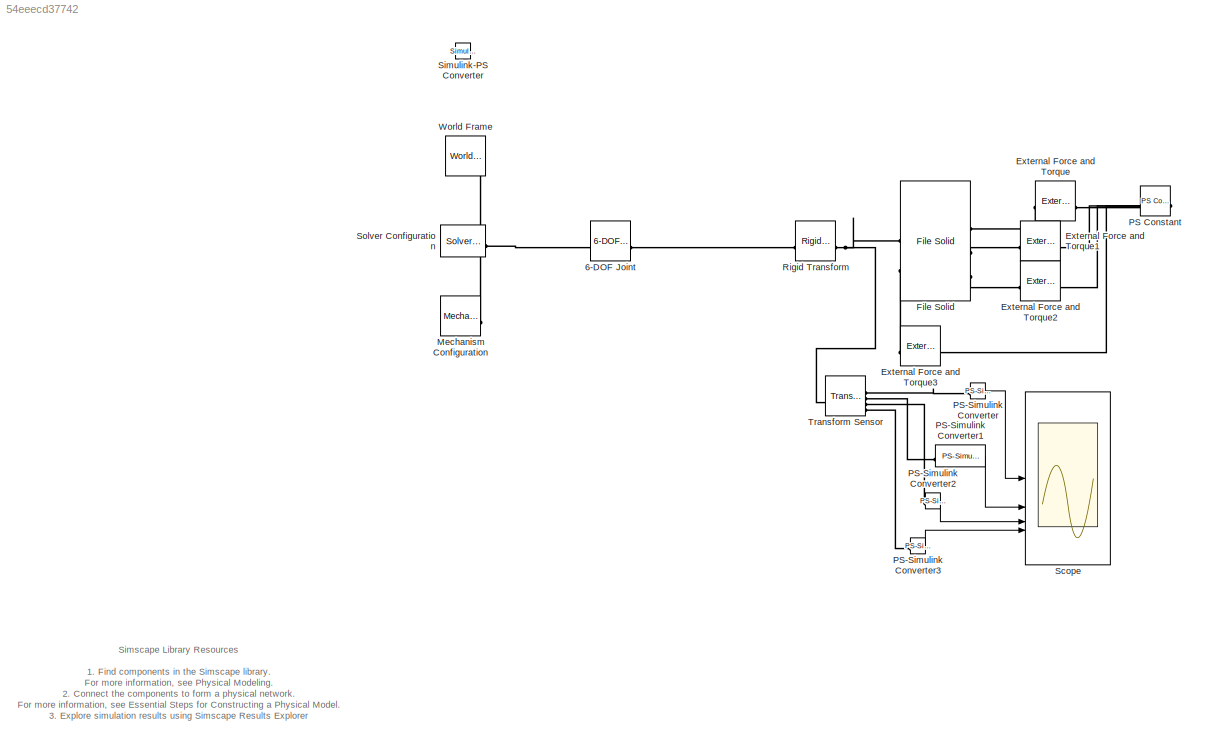
MODEL slx_54eeecd37742
KIND model
CONFIG AbsTol = 1e-3
CONFIG EnableMultiTasking = off
CONFIG FixedStep = 0.0001
CONFIG MaxStep = auto
CONFIG MinStep = auto
CONFIG RelTol = 1e-3
CONFIG SampleTimeConstraint = Unconstrained
CONFIG SolverName = FixedStepAuto
CONFIG StartTime = 0.0
CONFIG StopTime = 10.0
BLOCK [Reference] 6-DOF Joint  REF=sm_lib/Joints/6-DOF Joint
  SourceBlock = sm_lib/Joints/6-DOF Joint
  SourceType = 6-DOF Joint
BLOCK [Reference] External Force and Torque  REF=sm_lib/Forces and
Torques/External Force
and Torque
  NameLocation = top
  SourceBlock = sm_lib/Forces and\nTorques/External Force\nand Torque
  SourceType = External Force\nand Torque
BLOCK [Reference] External Force and Torque1  REF=sm_lib/Forces and
Torques/External Force
and Torque
  NameLocation = top
  SourceBlock = sm_lib/Forces and\nTorques/External Force\nand Torque
  SourceType = External Force\nand Torque
BLOCK [Reference] External Force and Torque2  REF=sm_lib/Forces and
Torques/External Force
and Torque
  NameLocation = top
  SourceBlock = sm_lib/Forces and\nTorques/External Force\nand Torque
  SourceType = External Force\nand Torque
BLOCK [Reference] External Force and Torque3  REF=sm_lib/Forces and
Torques/External Force
and Torque
  NameLocation = top
  SourceBlock = sm_lib/Forces and\nTorques/External Force\nand Torque
  SourceType = External Force\nand Torque
BLOCK [Reference] File Solid  REF=sm_lib/Body Elements/File Solid
  NameLocation = top
  SourceBlock = sm_lib/Body Elements/File Solid
  SourceType = File Solid
BLOCK [Reference] Mechanism Configuration  REF=sm_lib/Utilities/Mechanism
Configuration
  SourceBlock = sm_lib/Utilities/Mechanism\nConfiguration
  SourceType = Mechanism\nConfiguration
BLOCK [Reference] PS Constant  REF=fl_lib/Physical Signals/Sources/PS Constant
  NameLocation = top
  SourceBlock = fl_lib/Physical Signals/Sources/PS Constant
  SourceType = PS Constant
BLOCK [Reference] PS-Simulink Converter  REF=nesl_utility/PS-Simulink
Converter
  SourceBlock = nesl_utility/PS-Simulink\nConverter
  SourceType = PS-Simulink\nConverter
BLOCK [Reference] PS-Simulink Converter1  REF=nesl_utility/PS-Simulink
Converter
  SourceBlock = nesl_utility/PS-Simulink\nConverter
  SourceType = PS-Simulink\nConverter
BLOCK [Reference] PS-Simulink Converter2  REF=nesl_utility/PS-Simulink
Converter
  SourceBlock = nesl_utility/PS-Simulink\nConverter
  SourceType = PS-Simulink\nConverter
BLOCK [Reference] PS-Simulink Converter3  REF=nesl_utility/PS-Simulink
Converter
  SourceBlock = nesl_utility/PS-Simulink\nConverter
  SourceType = PS-Simulink\nConverter
BLOCK [Reference] Rigid Transform  REF=sm_lib/Frames and
Transforms/Rigid
Transform
  SourceBlock = sm_lib/Frames and\nTransforms/Rigid\nTransform
  SourceType = Rigid\nTransform
BLOCK [Scope] Scope
  Floating = off
  NumInputPorts = 4
  ScopeSpecificationString = Simulink.scopes.TimeScopeBlockCfg('CurrentConfiguration', extmgr.ConfigurationSet(extmgr.Configuration('Core','General UI',true),extmgr.Configuration('Core','Source UI',true),extmgr.Configuration('Sources','WiredSimulink',true),extmgr.Configuration('Visuals','Time Domain',true,'SerializedDisplays',{struct('MinYLimReal','-0.39253','MaxYLimReal','3.53427','YLabelReal','','MinYLimMag','0.00000','MaxY...<+3739ch>
BLOCK [Reference] Simulink-PS Converter  REF=nesl_utility/Simulink-PS
Converter
  SourceBlock = nesl_utility/Simulink-PS\nConverter
  SourceType = Simulink-PS\nConverter
BLOCK [Reference] Solver Configuration  REF=nesl_utility/Solver
Configuration
  SourceBlock = nesl_utility/Solver\nConfiguration
  SourceType = Solver\nConfiguration
BLOCK [Reference] Transform Sensor  REF=sm_lib/Frames and
Transforms/Transform
Sensor
  SourceBlock = sm_lib/Frames and\nTransforms/Transform\nSensor
  SourceType = Transform\nSensor
BLOCK [Reference] World Frame  REF=sm_lib/Frames and
Transforms/World Frame
  SourceBlock = sm_lib/Frames and\nTransforms/World Frame
  SourceType = World Frame
ANNOTATION (root): 1. Find components in the Simscape library . For more information, see Physical Modeling . 2. Connect the components to form a physical network. For more information, see Essential Steps for Constructing a Physical Model . 3. Explore simulation results using Simscape Results Explorer
ANNOTATION (root): Simscape Library Resources
LINE PS-Simulink Converter1:1 -> Scope:2
LINE PS-Simulink Converter2:1 -> Scope:3
LINE PS-Simulink Converter3:1 -> Scope:4
LINE PS-Simulink Converter:1 -> Scope:1
PNET net1: 6-DOF Joint:LConn1 -- Mechanism Configuration:RConn1 -- Solver Configuration:RConn1 -- World Frame:RConn1
PLINE 6-DOF Joint:RConn1 -- Rigid Transform:LConn1
PNET net2: External Force and Torque1:LConn1 -- External Force and Torque2:LConn1 -- External Force and Torque3:LConn1 -- External Force and Torque:LConn1 -- PS Constant:RConn1
PLINE External Force and Torque1:RConn1 -- File Solid:LConn2
PLINE External Force and Torque2:RConn1 -- File Solid:LConn3
PLINE External Force and Torque3:RConn1 -- File Solid:RConn2
PLINE External Force and Torque:RConn1 -- File Solid:LConn1
PNET net3: File Solid:RConn1 -- Rigid Transform:RConn1 -- Transform Sensor:LConn1
PLINE PS-Simulink Converter1:LConn1 -- Transform Sensor:RConn3
PLINE PS-Simulink Converter2:LConn1 -- Transform Sensor:RConn4
PLINE PS-Simulink Converter3:LConn1 -- Transform Sensor:RConn5
PLINE PS-Simulink Converter:LConn1 -- Transform Sensor:RConn2
note: PNET lines group multi-terminal physical nets as a canonical sorted terminal list (undirected conserving connections); 2-terminal nets keep the pairwise PLINE form
